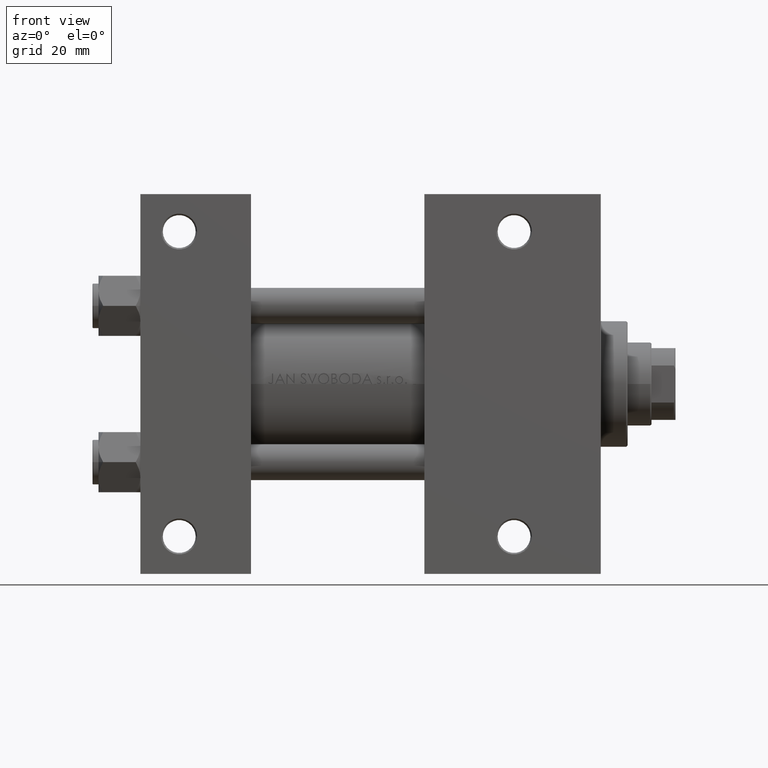
[diagram: clean part render]
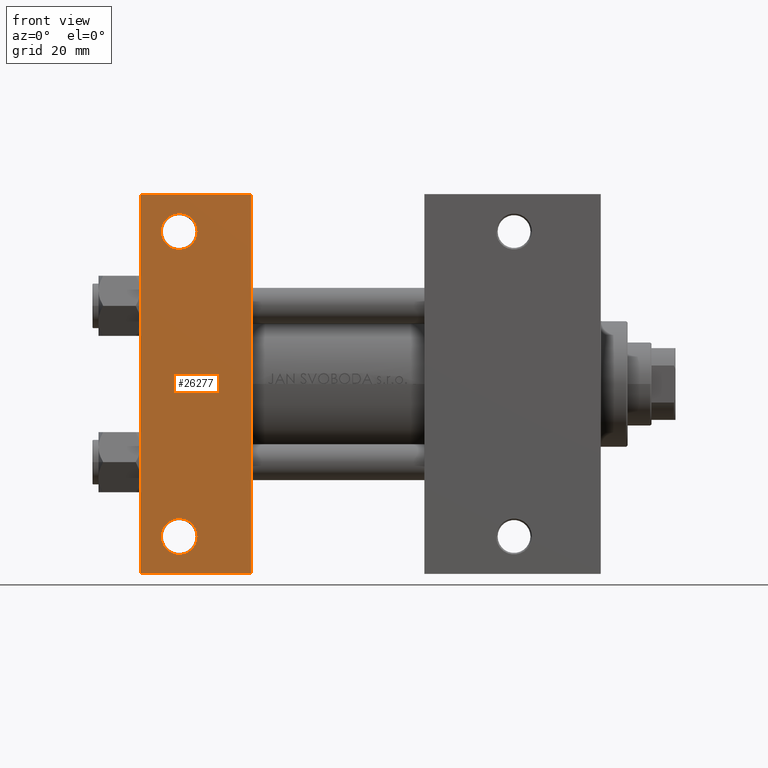
[diagram: same view with one face highlighted and labeled with its STEP entity id]
A machine part, front view. The second image highlights one B-rep face of the part: STEP entity #26277.
In plain terms, the highlighted planar face has unit normal (0, -1, -0).
Its self-contained STEP definition (entity closure, byte-faithful):
#340 = ORIENTED_EDGE ( 'NONE', *, *, #5106, .T. ) ;
#1331 = EDGE_CURVE ( 'NONE', #47245, #35550, #23097, .T. ) ;
#1382 = CARTESIAN_POINT ( 'NONE',  ( 12.99999999999999822, 50.99999999999996447, -37.50000000000000000 ) ) ;
#1802 = CARTESIAN_POINT ( 'NONE',  ( 37.00000000000000000, 37.49999999999999289, -37.50000000000000000 ) ) ;
#4223 = VECTOR ( 'NONE', #5331, 1000.000000000000000 ) ;
#4329 = DIRECTION ( 'NONE',  ( 1.000000000000000000, 0.000000000000000000, 0.000000000000000000 ) ) ;
#4450 = VECTOR ( 'NONE', #4329, 1000.000000000000000 ) ;
#4491 = DIRECTION ( 'NONE',  ( 0.000000000000000000, -1.000000000000000000, -9.251858538542972814E-17 ) ) ;
#4772 = ORIENTED_EDGE ( 'NONE', *, *, #21172, .T. ) ;
#5060 = CARTESIAN_POINT ( 'NONE',  ( 37.00000000000001421, 63.50000000000000000, -37.50000000000002132 ) ) ;
#5106 = EDGE_CURVE ( 'NONE', #9388, #45452, #34776, .T. ) ;
#5331 = DIRECTION ( 'NONE',  ( 0.000000000000000000, -1.000000000000000000, -9.251858538542972814E-17 ) ) ;
#5462 = CARTESIAN_POINT ( 'NONE',  ( 7.000499999999979295, -51.00000000000001421, -37.50000000000000711 ) ) ;
#6376 = EDGE_LOOP ( 'NONE', ( #340, #4772 ) ) ;
#6970 = CARTESIAN_POINT ( 'NONE',  ( 7.000500000000006828, 50.99999999999996447, -37.50000000000000000 ) ) ;
#7549 = AXIS2_PLACEMENT_3D ( 'NONE', #29876, #45436, #15325 ) ;
#8214 = EDGE_CURVE ( 'NONE', #19153, #34331, #26062, .T. ) ;
#8256 = EDGE_CURVE ( 'NONE', #28697, #28503, #39171, .T. ) ;
#9225 = DIRECTION ( 'NONE',  ( -0.000000000000000000, -9.251858538542972814E-17, 1.000000000000000000 ) ) ;
#9388 = VERTEX_POINT ( 'NONE', #6970 ) ;
#11849 = CARTESIAN_POINT ( 'NONE',  ( 18.99949999999998695, 50.99999999999996447, -37.50000000000000000 ) ) ;
#12354 = DIRECTION ( 'NONE',  ( -0.000000000000000000, -9.251858538542972814E-17, 1.000000000000000000 ) ) ;
#13143 = AXIS2_PLACEMENT_3D ( 'NONE', #31304, #9225, #43813 ) ;
#13649 = DIRECTION ( 'NONE',  ( -0.000000000000000000, -9.251858538542972814E-17, 1.000000000000000000 ) ) ;
#14479 = ORIENTED_EDGE ( 'NONE', *, *, #8256, .T. ) ;
#14589 = PLANE ( 'NONE',  #7549 ) ;
#15325 = DIRECTION ( 'NONE',  ( 0.000000000000000000, 1.000000000000000000, 9.251858538542972814E-17 ) ) ;
#16041 = ORIENTED_EDGE ( 'NONE', *, *, #21452, .T. ) ;
#16213 = CARTESIAN_POINT ( 'NONE',  ( 3.977209754999747208E-16, -63.50000000000000000, -37.49999999999999289 ) ) ;
#18091 = VECTOR ( 'NONE', #4491, 1000.000000000000000 ) ;
#19153 = VERTEX_POINT ( 'NONE', #37611 ) ;
#19363 = DIRECTION ( 'NONE',  ( 0.000000000000000000, 1.000000000000000000, 0.000000000000000000 ) ) ;
#19763 = EDGE_LOOP ( 'NONE', ( #23823, #14479, #16041, #45373 ) ) ;
#20173 = EDGE_CURVE ( 'NONE', #34331, #19153, #46571, .T. ) ;
#21172 = EDGE_CURVE ( 'NONE', #45452, #9388, #46605, .T. ) ;
#21452 = EDGE_CURVE ( 'NONE', #28503, #47245, #43926, .T. ) ;
#21789 = VECTOR ( 'NONE', #42413, 1000.000000000000000 ) ;
#22585 = FACE_BOUND ( 'NONE', #33088, .T. ) ;
#23097 = LINE ( 'NONE', #42169, #21789 ) ;
#23823 = ORIENTED_EDGE ( 'NONE', *, *, #34341, .F. ) ;
#24511 = LINE ( 'NONE', #31802, #18091 ) ;
#24957 = AXIS2_PLACEMENT_3D ( 'NONE', #1382, #13649, #43983 ) ;
#25493 = CARTESIAN_POINT ( 'NONE',  ( 12.99999999999999822, -51.00000000000001421, -37.50000000000000711 ) ) ;
#26062 = CIRCLE ( 'NONE', #26857, 5.999500000000018929 ) ;
#26277 = ADVANCED_FACE ( 'NONE', ( #30369, #22585, #33635 ), #14589, .T. ) ;
#26857 = AXIS2_PLACEMENT_3D ( 'NONE', #35164, #12354, #19363 ) ;
#28503 = VERTEX_POINT ( 'NONE', #5060 ) ;
#28697 = VERTEX_POINT ( 'NONE', #29851 ) ;
#29851 = CARTESIAN_POINT ( 'NONE',  ( 1.595073532467135441E-14, 63.50000000000000000, -37.50000000000002132 ) ) ;
#29876 = CARTESIAN_POINT ( 'NONE',  ( 37.00000000000000000, 37.49999999999999289, -37.50000000000000000 ) ) ;
#30369 = FACE_BOUND ( 'NONE', #6376, .T. ) ;
#31304 = CARTESIAN_POINT ( 'NONE',  ( 12.99999999999999822, 50.99999999999996447, -37.50000000000000000 ) ) ;
#31802 = CARTESIAN_POINT ( 'NONE',  ( 0.000000000000000000, 37.49999999999999289, -37.50000000000000000 ) ) ;
#33088 = EDGE_LOOP ( 'NONE', ( #42775, #36398 ) ) ;
#33272 = DIRECTION ( 'NONE',  ( -0.000000000000000000, -9.251858538542972814E-17, 1.000000000000000000 ) ) ;
#33635 = FACE_OUTER_BOUND ( 'NONE', #19763, .T. ) ;
#34331 = VERTEX_POINT ( 'NONE', #5462 ) ;
#34341 = EDGE_CURVE ( 'NONE', #28697, #35550, #24511, .T. ) ;
#34776 = CIRCLE ( 'NONE', #13143, 5.999499999999990507 ) ;
#35164 = CARTESIAN_POINT ( 'NONE',  ( 12.99999999999999822, -51.00000000000001421, -37.50000000000000711 ) ) ;
#35550 = VERTEX_POINT ( 'NONE', #16213 ) ;
#36398 = ORIENTED_EDGE ( 'NONE', *, *, #8214, .T. ) ;
#37611 = CARTESIAN_POINT ( 'NONE',  ( 18.99950000000001538, -51.00000000000001421, -37.50000000000000711 ) ) ;
#39171 = LINE ( 'NONE', #46703, #4450 ) ;
#42169 = CARTESIAN_POINT ( 'NONE',  ( 3.977209754999747208E-16, -63.50000000000000000, -37.49999999999999289 ) ) ;
#42413 = DIRECTION ( 'NONE',  ( -1.000000000000000000, -0.000000000000000000, -0.000000000000000000 ) ) ;
#42775 = ORIENTED_EDGE ( 'NONE', *, *, #20173, .T. ) ;
#43813 = DIRECTION ( 'NONE',  ( 0.000000000000000000, 1.000000000000000000, 0.000000000000000000 ) ) ;
#43926 = LINE ( 'NONE', #1802, #4223 ) ;
#43983 = DIRECTION ( 'NONE',  ( 0.000000000000000000, 1.000000000000000000, 0.000000000000000000 ) ) ;
#44790 = CARTESIAN_POINT ( 'NONE',  ( 37.00000000000000000, -63.50000000000000000, -37.49999999999999289 ) ) ;
#44817 = DIRECTION ( 'NONE',  ( 0.000000000000000000, 1.000000000000000000, 0.000000000000000000 ) ) ;
#45373 = ORIENTED_EDGE ( 'NONE', *, *, #1331, .T. ) ;
#45436 = DIRECTION ( 'NONE',  ( 0.000000000000000000, 9.251858538542972814E-17, -1.000000000000000000 ) ) ;
#45452 = VERTEX_POINT ( 'NONE', #11849 ) ;
#46571 = CIRCLE ( 'NONE', #48987, 5.999500000000018929 ) ;
#46605 = CIRCLE ( 'NONE', #24957, 5.999499999999990507 ) ;
#46703 = CARTESIAN_POINT ( 'NONE',  ( 1.595073532467135441E-14, 63.50000000000000000, -37.50000000000002132 ) ) ;
#47245 = VERTEX_POINT ( 'NONE', #44790 ) ;
#48987 = AXIS2_PLACEMENT_3D ( 'NONE', #25493, #33272, #44817 ) ;